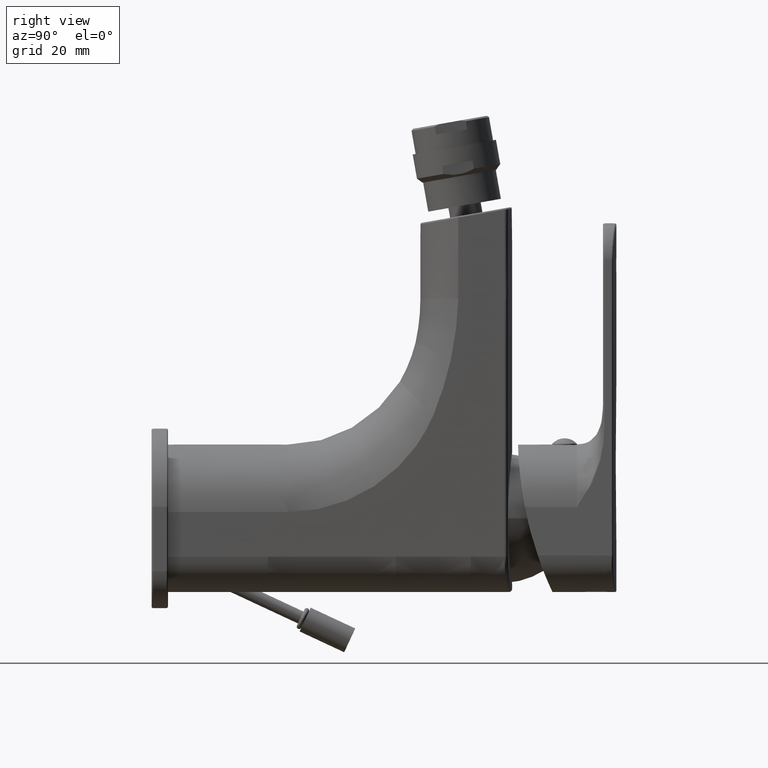
[diagram: clean part render]
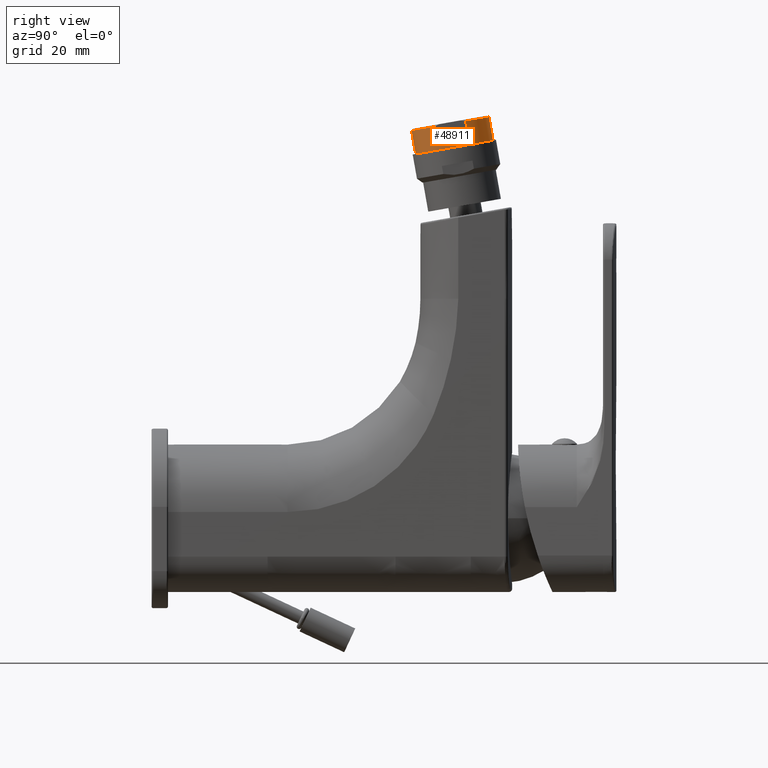
[diagram: same view with one face highlighted and labeled with its STEP entity id]
A machine part, right view. The second image highlights one B-rep face of the part: STEP entity #48911.
In plain terms, the highlighted cylindrical surface (partial cylindrical patch) has radius 12 mm, axis along (0, -0.1736, 0.9848).
Its self-contained STEP definition (entity closure, byte-faithful):
#6336=CARTESIAN_POINT('',(0.E0,8.610326380791E1,1.203030241418E2));
#6337=DIRECTION('',(0.E0,1.736481776669E-1,-9.848077530122E-1));
#6338=DIRECTION('',(9.166666666667E-1,-3.935810055249E-1,-6.939895036841E-2));
#6339=AXIS2_PLACEMENT_3D('',#6336,#6337,#6338);
#6341=DIRECTION('',(0.E0,-1.736481776342E-1,9.848077530180E-1));
#6342=VECTOR('',#6341,2.499998153079E0);
#6343=CARTESIAN_POINT('',(1.1E1,8.181441186498E1,1.170082191737E2));
#6344=LINE('',#6343,#6342);
#6345=CARTESIAN_POINT('',(0.E0,8.653738393136E1,1.178410065781E2));
#6346=DIRECTION('',(0.E0,-1.736481776669E-1,9.848077530122E-1));
#6347=DIRECTION('',(9.166666666590E-1,-3.935810055421E-1,-6.939895037144E-2));
#6348=AXIS2_PLACEMENT_3D('',#6345,#6346,#6347);
#6350=DIRECTION('',(0.E0,-1.736481776997E-1,9.848077530064E-1));
#6351=VECTOR('',#6350,2.499998153079E0);
#6352=CARTESIAN_POINT('',(1.1E1,9.126035599774E1,1.186737939825E2));
#6353=LINE('',#6352,#6351);
#6354=CARTESIAN_POINT('',(0.E0,8.610326380791E1,1.203030241418E2));
#6355=DIRECTION('',(0.E0,1.736481776669E-1,-9.848077530122E-1));
#6356=DIRECTION('',(0.E0,9.848077530122E-1,1.736481776669E-1));
#6357=AXIS2_PLACEMENT_3D('',#6354,#6355,#6356);
#6369=CARTESIAN_POINT('',(0.E0,8.735353036639E1,1.132124101389E2));
#6370=DIRECTION('',(0.E0,-1.736481776669E-1,9.848077530122E-1));
#6371=DIRECTION('',(0.E0,-9.848077530122E-1,-1.736481776669E-1));
#6372=AXIS2_PLACEMENT_3D('',#6369,#6370,#6371);
#30538=DIRECTION('',(2.451758243363E-7,1.736482197722E-1,-9.848077455879E-1));
#30539=VECTOR('',#30538,7.199999692194E0);
#30540=CARTESIAN_POINT('',(-1.765265858651E-6,9.792095627363E1,
1.223868037360E2));
#30541=LINE('',#30540,#30539);
#30565=DIRECTION('',(-2.489637532433E-7,1.736481355617E-1,-9.848077604365E-1));
#30566=VECTOR('',#30565,7.199999692194E0);
#30567=CARTESIAN_POINT('',(1.792538951742E-6,7.428557080765E1,
1.182192475790E2));
#30568=LINE('',#30567,#30566);
#40186=CARTESIAN_POINT('',(1.099999999991E1,8.181441186486E1,1.170082191736E2));
#40187=CARTESIAN_POINT('',(1.099999999991E1,9.126035599787E1,1.186737939826E2));
#40188=VERTEX_POINT('',#40186);
#40189=VERTEX_POINT('',#40187);
#40190=CARTESIAN_POINT('',(1.1E1,8.138029174161E1,1.194702367373E2));
#40191=VERTEX_POINT('',#40190);
#40192=CARTESIAN_POINT('',(1.1E1,9.082623587421E1,1.211358115462E2));
#40193=VERTEX_POINT('',#40192);
#40210=CARTESIAN_POINT('',(0.E0,7.428557077176E1,1.182192460098E2));
#40211=VERTEX_POINT('',#40210);
#40212=CARTESIAN_POINT('',(0.E0,9.792095684405E1,1.223868022738E2));
#40213=VERTEX_POINT('',#40212);
#40214=CARTESIAN_POINT('',(0.E0,7.553583733025E1,1.111286320069E2));
#40215=CARTESIAN_POINT('',(0.E0,9.917122340254E1,1.152961882709E2));
#40216=VERTEX_POINT('',#40214);
#40217=VERTEX_POINT('',#40215);
#48890=CARTESIAN_POINT('',(0.E0,8.820440643696E1,1.083868521492E2));
#48891=DIRECTION('',(0.E0,-1.736481776669E-1,9.848077530122E-1));
#48892=DIRECTION('',(0.E0,9.848077530122E-1,1.736481776669E-1));
#48893=AXIS2_PLACEMENT_3D('',#48890,#48891,#48892);
#48894=CYLINDRICAL_SURFACE('',#48893,1.2E1);
#48896=ORIENTED_EDGE('',*,*,#48895,.F.);
#48898=ORIENTED_EDGE('',*,*,#48897,.F.);
#48900=ORIENTED_EDGE('',*,*,#48899,.F.);
#48901=ORIENTED_EDGE('',*,*,#48869,.F.);
#48903=ORIENTED_EDGE('',*,*,#48902,.T.);
#48904=ORIENTED_EDGE('',*,*,#48876,.T.);
#48906=ORIENTED_EDGE('',*,*,#48905,.F.);
#48908=ORIENTED_EDGE('',*,*,#48907,.T.);
#48909=EDGE_LOOP('',(#48896,#48898,#48900,#48901,#48903,#48904,#48906,#48908));
#48910=FACE_OUTER_BOUND('',#48909,.F.);
#48911=ADVANCED_FACE('',(#48910),#48894,.T.);
#6340=CIRCLE('',#6339,1.2E1);
#6349=CIRCLE('',#6348,1.2E1);
#6358=CIRCLE('',#6357,1.2E1);
#6373=CIRCLE('',#6372,1.2E1);
#48869=EDGE_CURVE('',#40188,#40191,#6344,.T.);
#48876=EDGE_CURVE('',#40189,#40193,#6353,.T.);
#48895=EDGE_CURVE('',#40216,#40217,#6373,.T.);
#48897=EDGE_CURVE('',#40211,#40216,#30568,.T.);
#48899=EDGE_CURVE('',#40191,#40211,#6340,.T.);
#48902=EDGE_CURVE('',#40188,#40189,#6349,.T.);
#48905=EDGE_CURVE('',#40213,#40193,#6358,.T.);
#48907=EDGE_CURVE('',#40213,#40217,#30541,.T.);